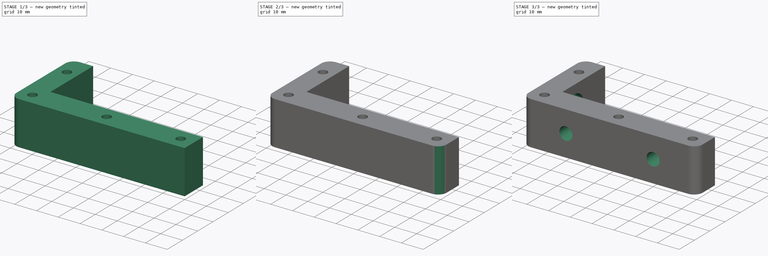
[diagram: build sequence overview — one tinted view per stage of 3, left to right]
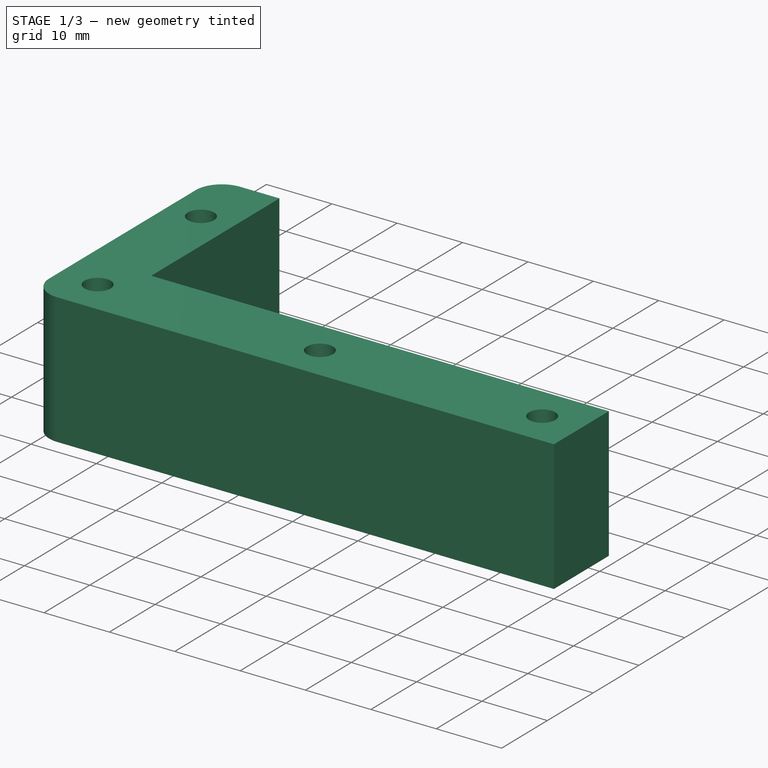
[diagram: stage 1 of 3 — iso view after this stage's code; geometry added in this stage tinted green]
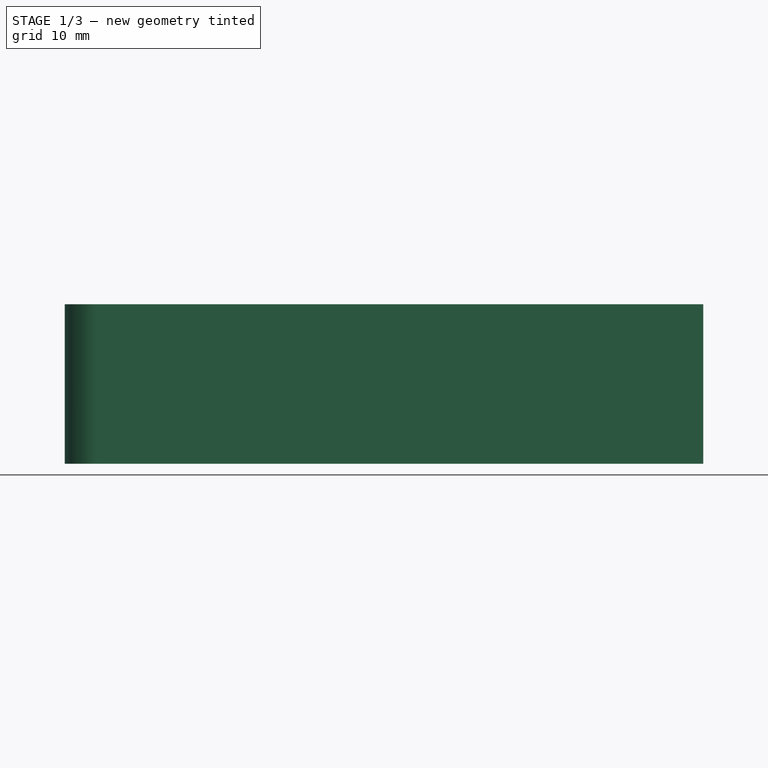
[diagram: stage 1 of 3 — front view after this stage's code; geometry added in this stage tinted green]
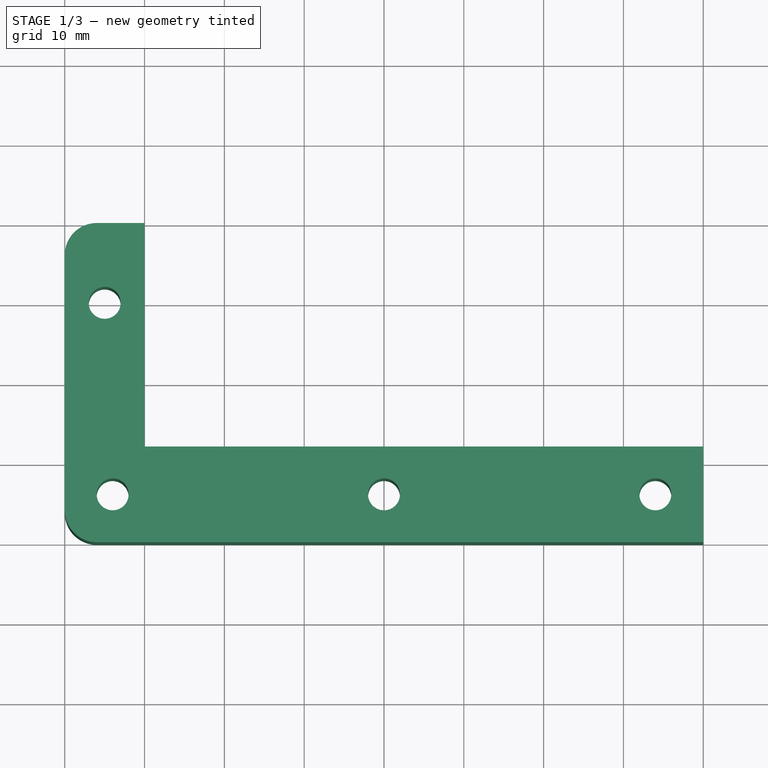
[diagram: stage 1 of 3 — top view after this stage's code; geometry added in this stage tinted green]
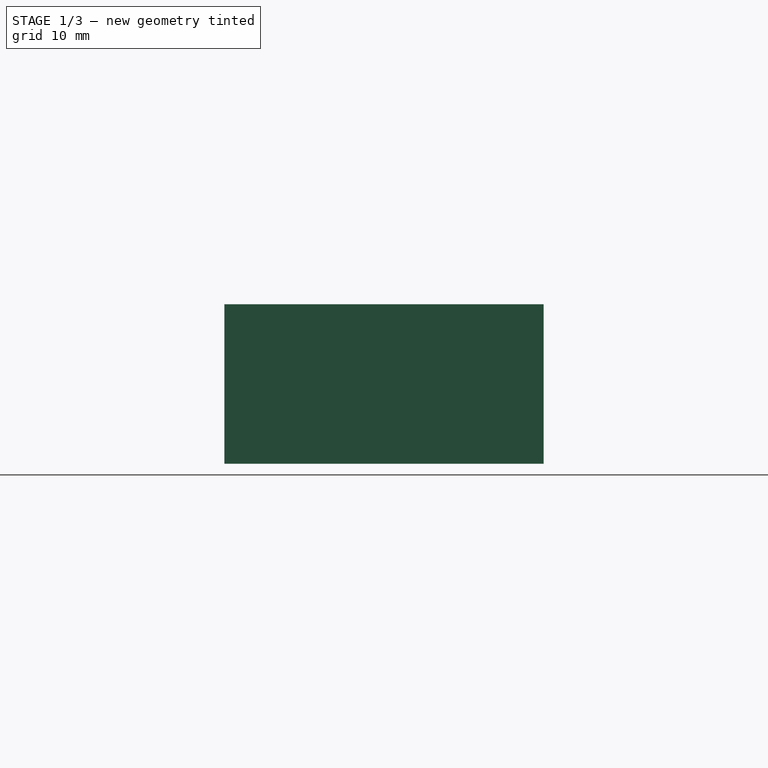
[diagram: stage 1 of 3 — right view after this stage's code; geometry added in this stage tinted green]
FCSTD DOCUMENT  (FreeCAD 0.14R3702 (Git))
Label: idler_connector2
License: CC-BY 3.0
LicenseURL: http://creativecommons.org/licenses/by/3.0/
objects: Sketcher::SketchObject×5, PartDesign::Pocket×4, PartDesign::Fillet×3, PartDesign::Pad×1
note: 18 computed .brp shape members not serialized (recipe doc carries the construction recipe); baked Part::Feature solids carry a one-line shape summary decoded from their .brp

FEATURE [Sketcher::SketchObject] Sketch
  sketch-geometry (10):
    g0: LineSegment StartX=80 StartY=0 StartZ=0 EndX=80 EndY=12 EndZ=0
    g1: LineSegment StartX=80 StartY=12 StartZ=0 EndX=10 EndY=12 EndZ=0
    g2: LineSegment StartX=10 StartY=12 StartZ=0 EndX=10 EndY=40 EndZ=0
    g3: LineSegment StartX=10 StartY=40 StartZ=0 EndX=0 EndY=40 EndZ=0
    g4: LineSegment StartX=0 StartY=40 StartZ=0 EndX=0 EndY=0 EndZ=0
    g5: LineSegment StartX=0 StartY=0 StartZ=0 EndX=80 EndY=0 EndZ=0
    g6: Circle CenterX=5 CenterY=30 CenterZ=0 NormalX=0 NormalY=0 NormalZ=1 Radius=2
    g7: Circle CenterX=6 CenterY=6 CenterZ=0 NormalX=0 NormalY=0 NormalZ=1 Radius=2
    g8: Circle CenterX=74 CenterY=6 CenterZ=0 NormalX=0 NormalY=0 NormalZ=1 Radius=2
    g9: Circle CenterX=40 CenterY=6 CenterZ=0 NormalX=0 NormalY=0 NormalZ=1 Radius=2
  constraints (29):
    c: PointOnObject(g0,g-1)
    c: Vertical(g0)
    c: Coincident(g0,g1)
    c: Horizontal(g1)
    c: Coincident(g1,g2)
    c: Vertical(g2)
    c: Coincident(g2,g3)
    c: Horizontal(g3)
    c: Coincident(g3,g4)
    c: Coincident(g4,g-1)
    c: Vertical(g4)
    c: Coincident(g4,g5)
    c: Coincident(g5,g0)
    c: DistanceY(g0) = 12
    c: DistanceX(g3) = -10
    c: DistanceX(g5) = 80
    c: DistanceY(g4) = -40
    c: DistanceX(g-1,g6) = 5
    c: DistanceY(g-1,g6) = 30
    c: Radius(g6) = 2
    c: DistanceX(g-1,g7) = 6
    c: DistanceY(g-1,g7) = 6
    c: Radius(g7) = 2
    c: DistanceX(g-1,g8) = 74
    c: DistanceY(g-1,g8) = 6
    c: Radius(g8) = 2
    c: DistanceY(g-1,g9) = 6
    c: DistanceX(g-1,g9) = 40
    c: Radius(g9) = 2
FEATURE [PartDesign::Pad] Pad
  Length = 20
  Length2 = 100
  Sketch = -> Sketch
  Type = 0
FEATURE [PartDesign::Fillet] Fillet
  Base = -> Pad [Edge11]
  Radius = 4
FEATURE [PartDesign::Fillet] Fillet001
  Base = -> Fillet [Edge27]
  Radius = 4
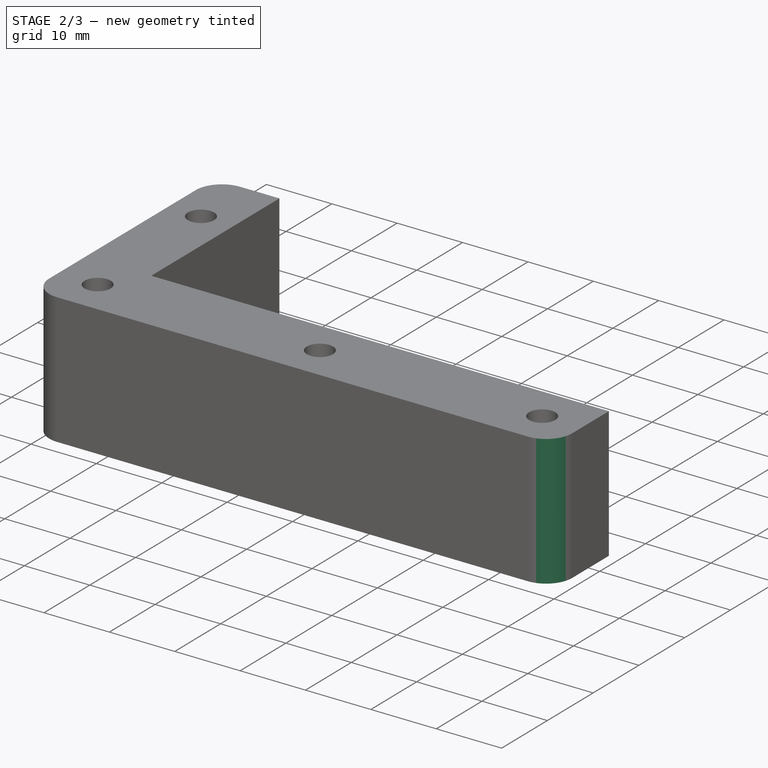
[diagram: stage 2 of 3 — iso view after this stage's code; geometry added in this stage tinted green]
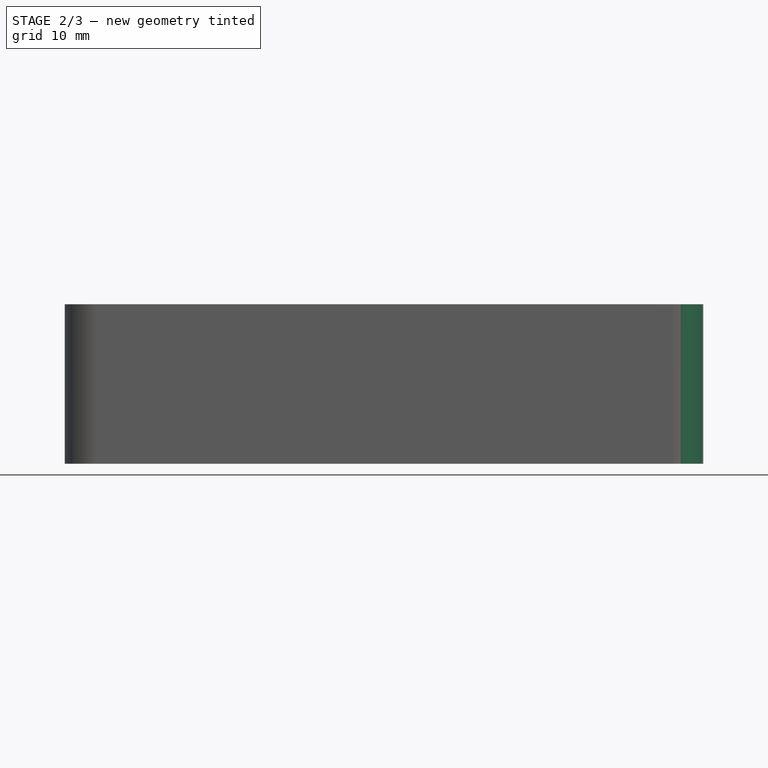
[diagram: stage 2 of 3 — front view after this stage's code; geometry added in this stage tinted green]
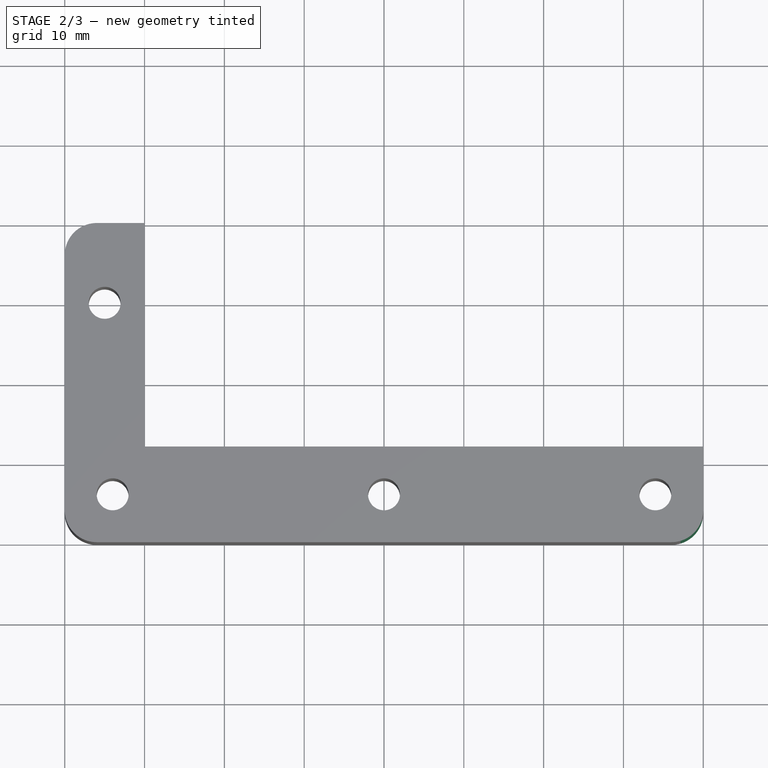
[diagram: stage 2 of 3 — top view after this stage's code; geometry added in this stage tinted green]
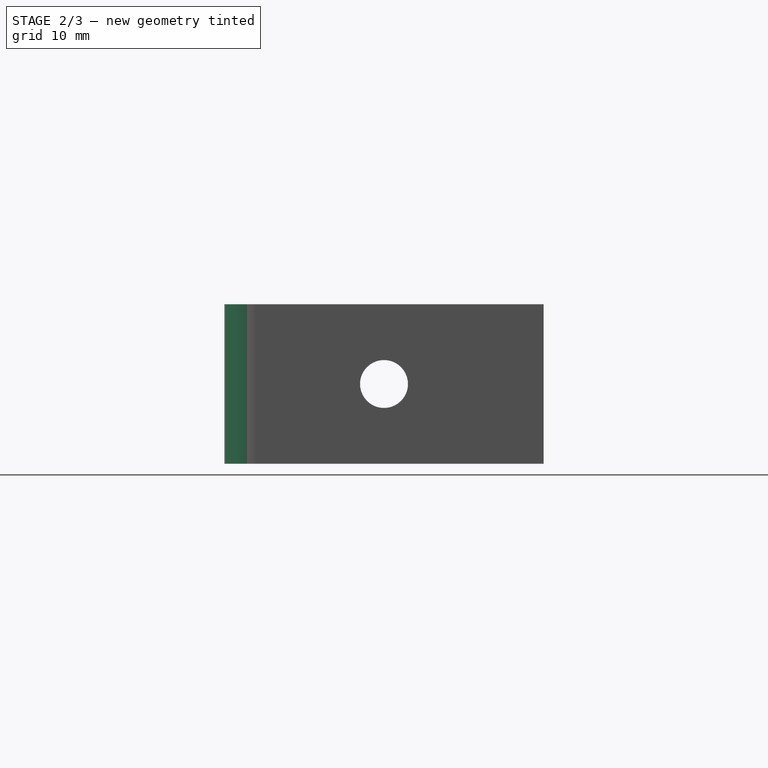
[diagram: stage 2 of 3 — right view after this stage's code; geometry added in this stage tinted green]
FEATURE [PartDesign::Fillet] Fillet002
  Base = -> Fillet001 [Edge20]
  Radius = 4
FEATURE [Sketcher::SketchObject] Sketch001
  Placement = pos=(10,0,0) rot=(0.57735,0.57735,0.57735;2.0944rad)
  Support = -> Fillet002 [Face9]
  sketch-geometry (1):
    g0: Circle CenterX=20 CenterY=10 CenterZ=0 NormalX=0 NormalY=0 NormalZ=1 Radius=3
  constraints (3):
    c: DistanceY(g-1,g0) = 10
    c: DistanceX(g-1,g0) = 20
    c: Radius(g0) = 3
FEATURE [PartDesign::Pocket] Pocket
  Length = 11
  Sketch = -> Sketch001
  Type = 0
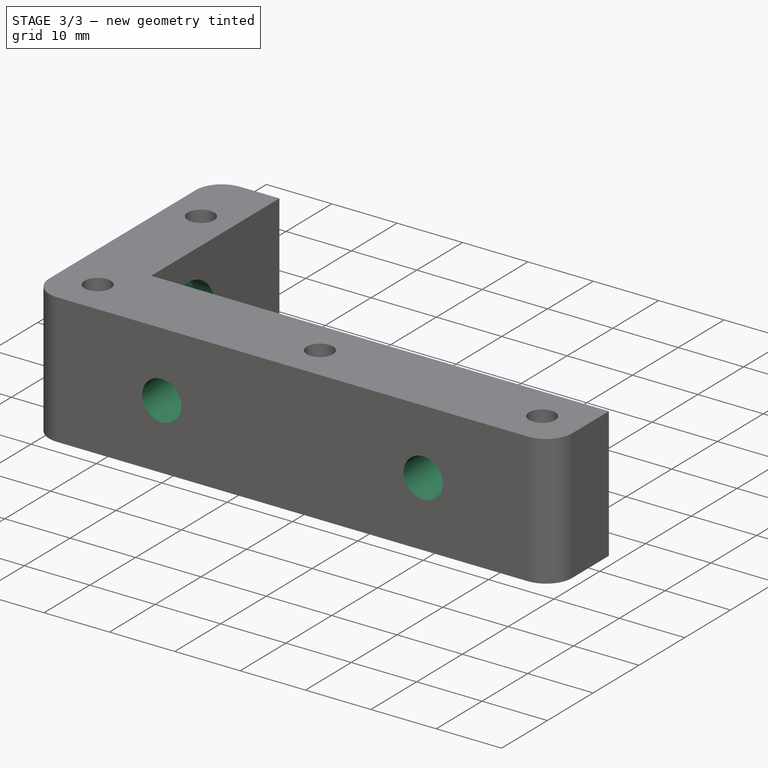
[diagram: stage 3 of 3 — iso view after this stage's code; geometry added in this stage tinted green]
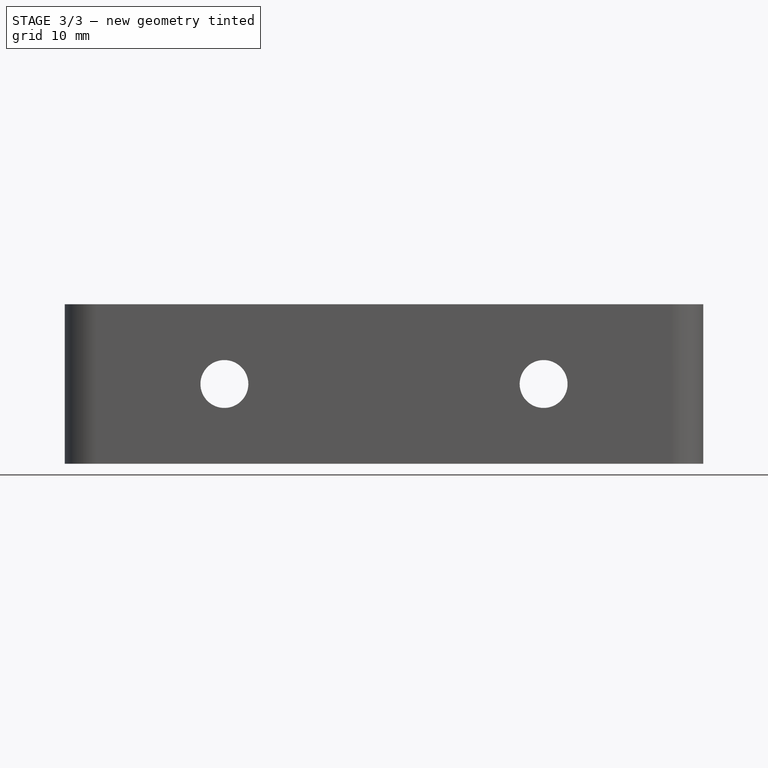
[diagram: stage 3 of 3 — front view after this stage's code; geometry added in this stage tinted green]
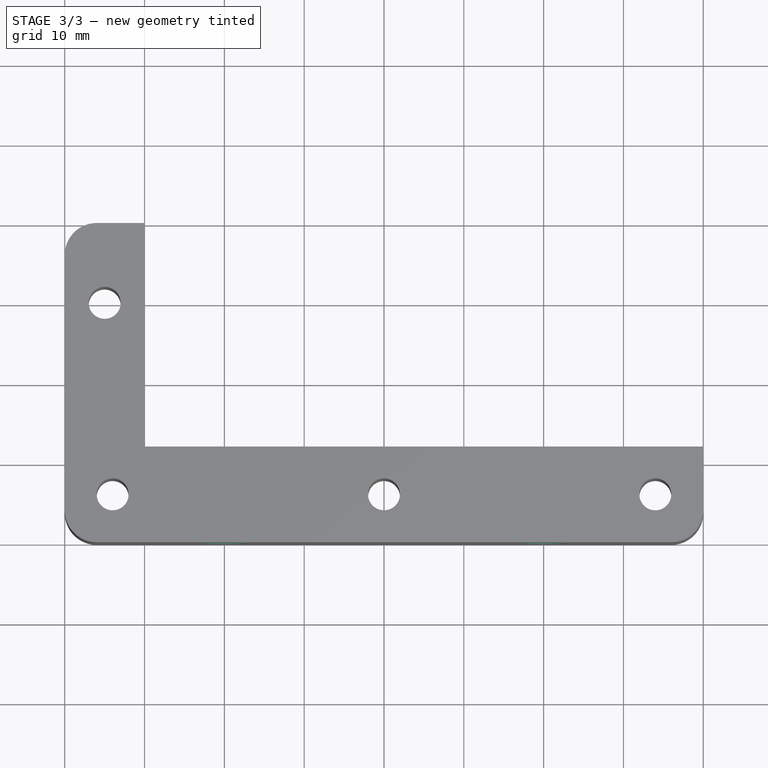
[diagram: stage 3 of 3 — top view after this stage's code; geometry added in this stage tinted green]
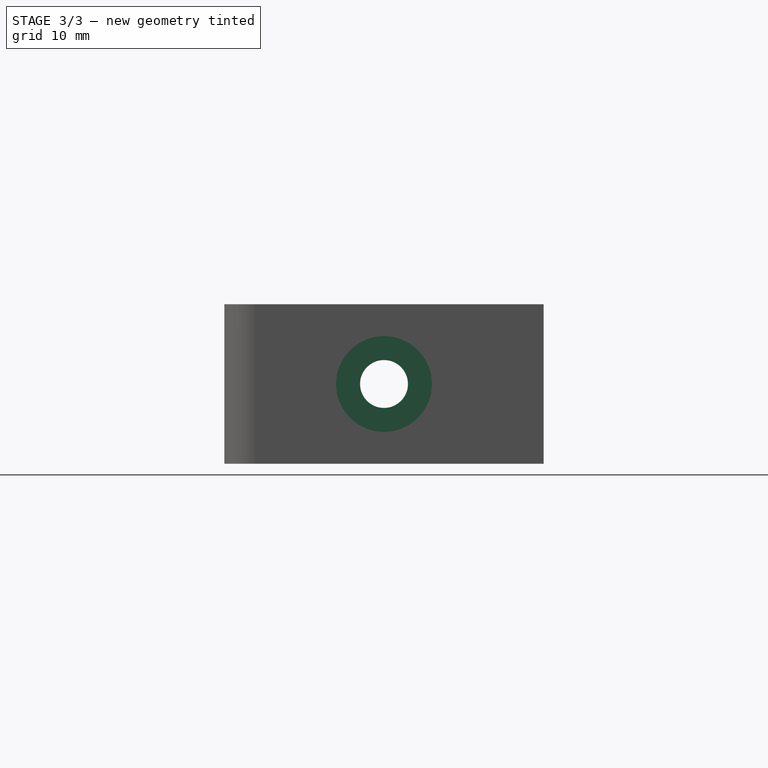
[diagram: stage 3 of 3 — right view after this stage's code; geometry added in this stage tinted green]
FEATURE [Sketcher::SketchObject] Sketch002
  Placement = pos=(0,12,0) rot=(0,0.707107,0.707107;3.14159rad)
  Support = -> Pocket [Face7]
  sketch-geometry (2):
    g0: Circle CenterX=-60 CenterY=10 CenterZ=0 NormalX=0 NormalY=0 NormalZ=1 Radius=3
    g1: Circle CenterX=-20 CenterY=10 CenterZ=0 NormalX=0 NormalY=0 NormalZ=1 Radius=3
  constraints (6):
    c: DistanceY(g-1,g0) = 10
    c: DistanceX(g-1,g0) = -60
    c: Radius(g0) = 3
    c: DistanceX(g-1,g1) = -20
    c: DistanceY(g-1,g1) = 10
    c: Radius(g1) = 3
FEATURE [PartDesign::Pocket] Pocket001
  Length = 13
  Sketch = -> Sketch002
  Type = 0
FEATURE [Sketcher::SketchObject] Sketch003
  Placement = pos=(10,0,0) rot=(0.57735,0.57735,0.57735;2.0944rad)
  Support = -> Pocket001 [Face9]
  sketch-geometry (1):
    g0: Circle CenterX=20 CenterY=10 CenterZ=0 NormalX=0 NormalY=0 NormalZ=1 Radius=6
  constraints (3):
    c: DistanceY(g-1,g0) = 10
    c: DistanceX(g-1,g0) = 20
    c: Radius(g0) = 6
FEATURE [PartDesign::Pocket] Pocket002
  Length = 3
  Sketch = -> Sketch003
  Type = 0
FEATURE [Sketcher::SketchObject] Sketch004
  Placement = pos=(0,12,0) rot=(0,0.707107,0.707107;3.14159rad)
  Support = -> Pocket002 [Face7]
  sketch-geometry (2):
    g0: Circle CenterX=-60 CenterY=10 CenterZ=0 NormalX=0 NormalY=0 NormalZ=1 Radius=6
    g1: Circle CenterX=-20 CenterY=10 CenterZ=0 NormalX=0 NormalY=0 NormalZ=1 Radius=6
  constraints (6):
    c: DistanceX(g-1,g0) = -60
    c: DistanceY(g-1,g0) = 10
    c: Radius(g0) = 6
    c: DistanceX(g-1,g1) = -20
    c: DistanceY(g-1,g1) = 10
    c: Radius(g1) = 6
FEATURE [PartDesign::Pocket] Pocket003
  Length = 5
  Sketch = -> Sketch004
  Type = 0
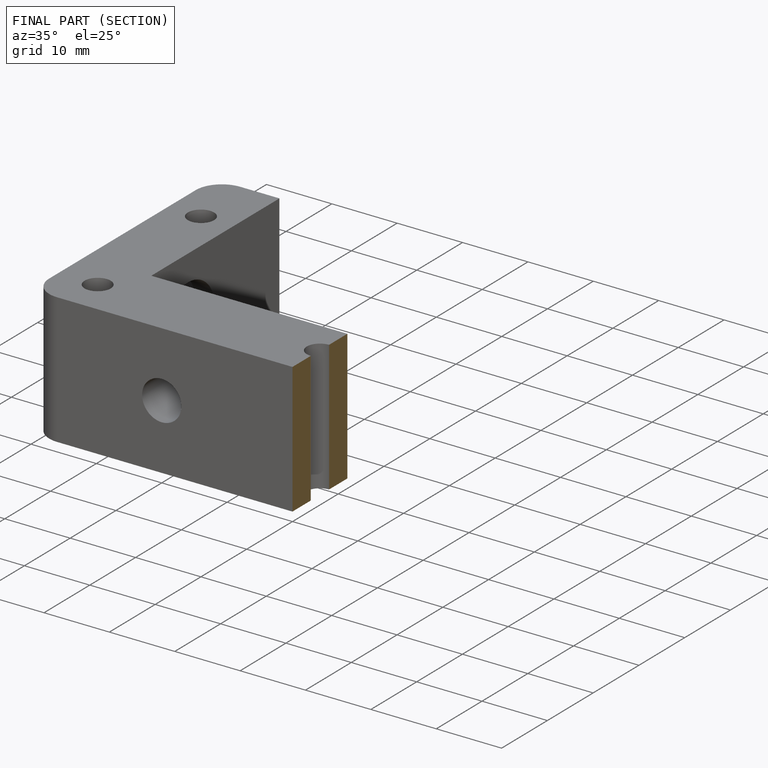
[diagram: finished part — half-section view (interior)]
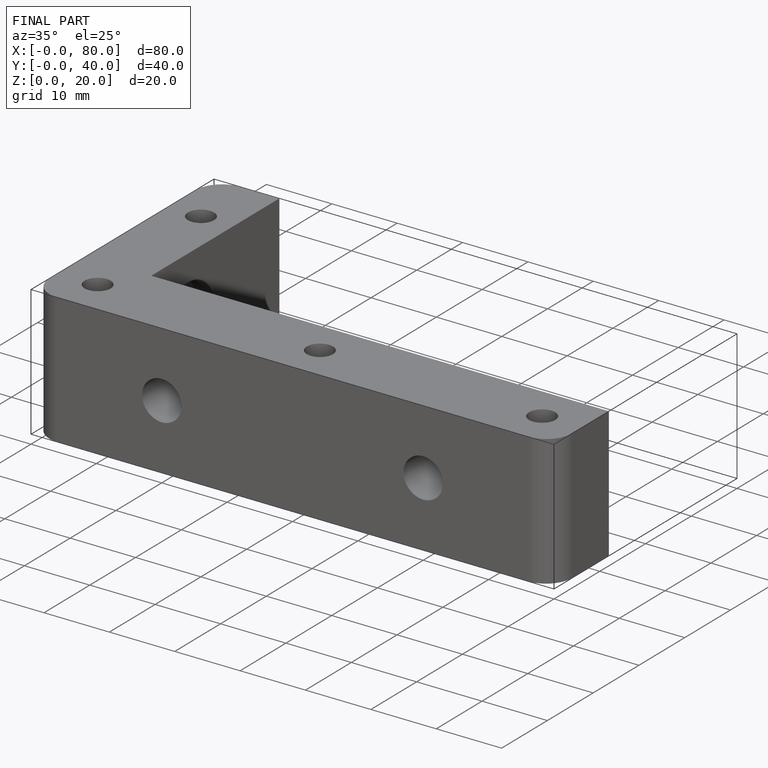
[diagram: finished part — iso view with bounding-box wireframe]
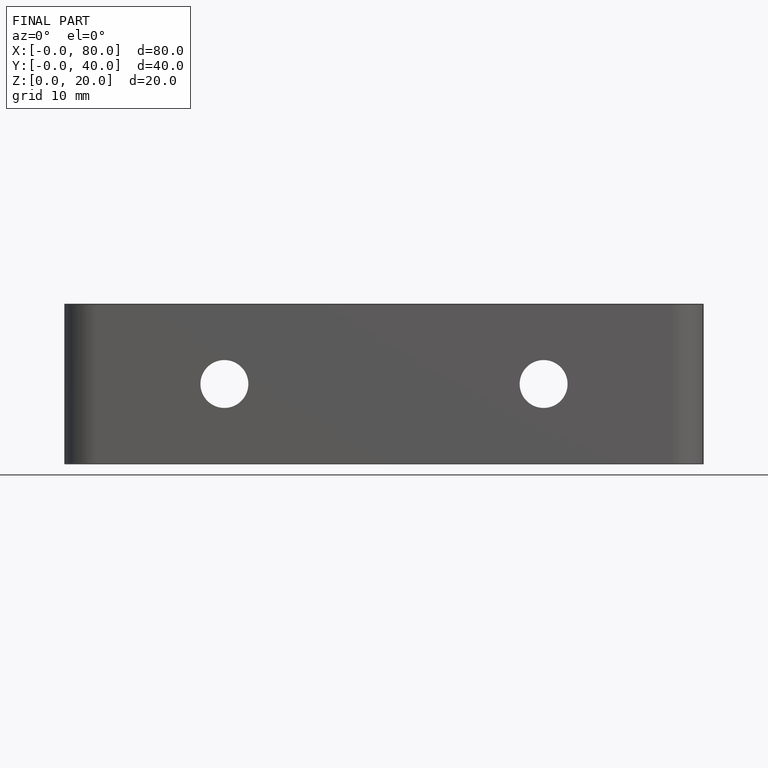
[diagram: finished part — front view with bounding-box wireframe]
